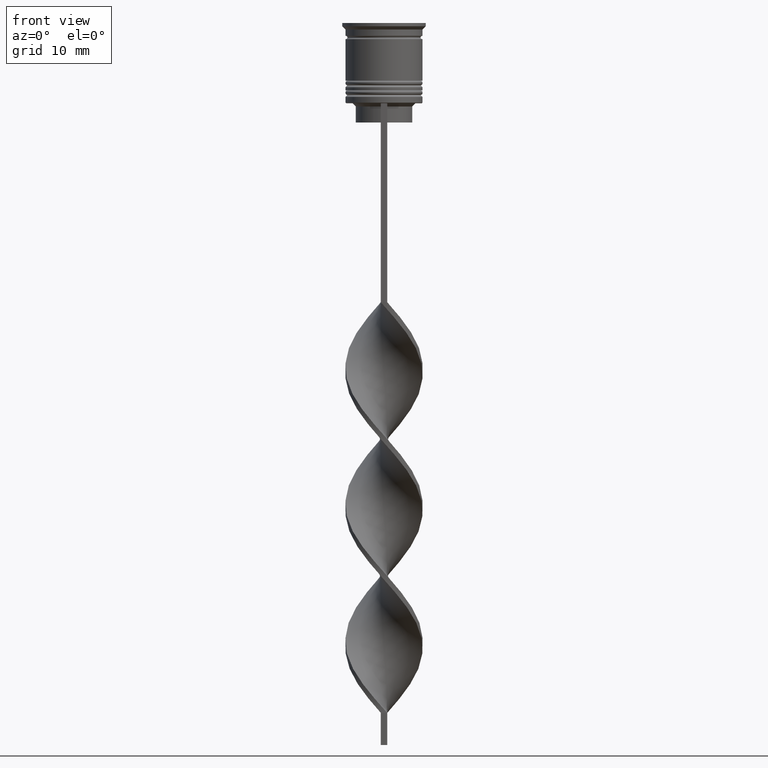
[diagram: clean part render]
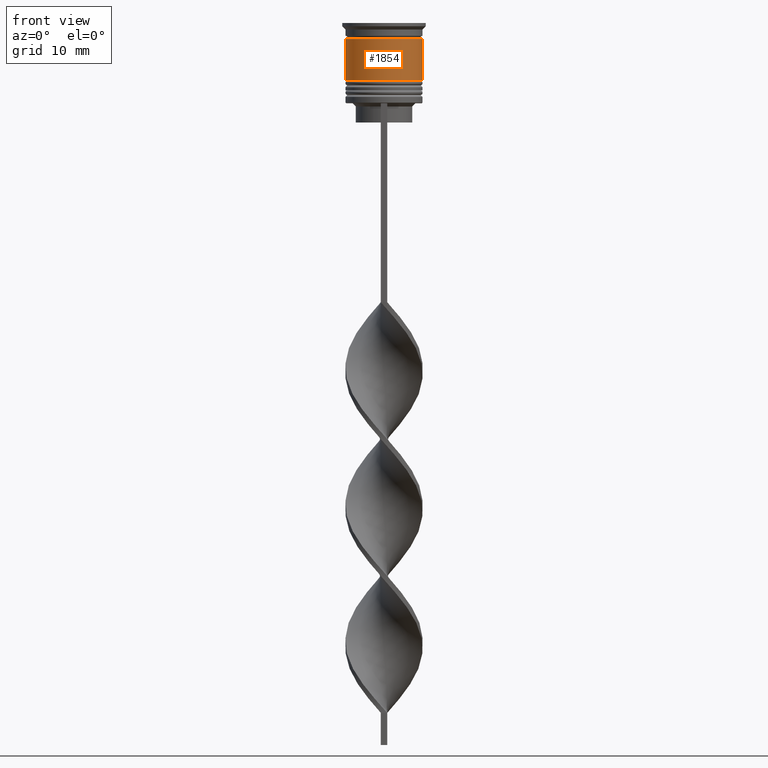
[diagram: same view with one face highlighted and labeled with its STEP entity id]
A machine part, front view. The second image highlights one B-rep face of the part: STEP entity #1854.
In plain terms, the highlighted cylindrical surface (partial cylindrical patch) has radius 6 mm, axis along (-0, -0, 1).
Its self-contained STEP definition (entity closure, byte-faithful):
#42 = CARTESIAN_POINT ( 'NONE',  ( 6.000000000000000000, 0.000000000000000000, 0.000000000000000000 ) ) ;
#134 = CIRCLE ( 'NONE', #2299, 5.999999999999999112 ) ;
#190 = EDGE_CURVE ( 'NONE', #3573, #1446, #2242, .T. ) ;
#226 = CARTESIAN_POINT ( 'NONE',  ( 0.000000000000000000, 0.000000000000000000, 0.000000000000000000 ) ) ;
#275 = DIRECTION ( 'NONE',  ( 1.000000000000000000, 0.000000000000000000, 0.000000000000000000 ) ) ;
#332 = EDGE_CURVE ( 'NONE', #3385, #1327, #860, .T. ) ;
#358 = CARTESIAN_POINT ( 'NONE',  ( 0.000000000000000000, 0.000000000000000000, -9.000000000000001776 ) ) ;
#422 = CIRCLE ( 'NONE', #1352, 6.000000000000000888 ) ;
#424 = CARTESIAN_POINT ( 'NONE',  ( -6.000000000000001776, 7.347880794884121708E-16, -9.000000000000001776 ) ) ;
#489 = CARTESIAN_POINT ( 'NONE',  ( 0.000000000000000000, 0.000000000000000000, -2.500000000000000444 ) ) ;
#732 = ORIENTED_EDGE ( 'NONE', *, *, #2391, .T. ) ;
#798 = FACE_OUTER_BOUND ( 'NONE', #1542, .T. ) ;
#860 = LINE ( 'NONE', #3345, #1276 ) ;
#902 = DIRECTION ( 'NONE',  ( -0.000000000000000000, -0.000000000000000000, 1.000000000000000000 ) ) ;
#1062 = DIRECTION ( 'NONE',  ( -0.000000000000000000, -0.000000000000000000, 1.000000000000000000 ) ) ;
#1063 = ORIENTED_EDGE ( 'NONE', *, *, #190, .T. ) ;
#1276 = VECTOR ( 'NONE', #902, 1000.000000000000000 ) ;
#1327 = VERTEX_POINT ( 'NONE', #3065 ) ;
#1334 = DIRECTION ( 'NONE',  ( 1.000000000000000000, 0.000000000000000000, 0.000000000000000000 ) ) ;
#1352 = AXIS2_PLACEMENT_3D ( 'NONE', #358, #2002, #2566 ) ;
#1446 = VERTEX_POINT ( 'NONE', #1997 ) ;
#1542 = EDGE_LOOP ( 'NONE', ( #1910, #732, #1063, #1892 ) ) ;
#1725 = CARTESIAN_POINT ( 'NONE',  ( 6.000000000000000888, 0.000000000000000000, -9.000000000000001776 ) ) ;
#1854 = ADVANCED_FACE ( 'NONE', ( #798 ), #3037, .T. ) ;
#1892 = ORIENTED_EDGE ( 'NONE', *, *, #2313, .F. ) ;
#1910 = ORIENTED_EDGE ( 'NONE', *, *, #332, .F. ) ;
#1989 = DIRECTION ( 'NONE',  ( -0.000000000000000000, -0.000000000000000000, 1.000000000000000000 ) ) ;
#1997 = CARTESIAN_POINT ( 'NONE',  ( 5.999999999999999112, 0.000000000000000000, -2.500000000000000444 ) ) ;
#2002 = DIRECTION ( 'NONE',  ( -0.000000000000000000, -0.000000000000000000, 1.000000000000000000 ) ) ;
#2242 = LINE ( 'NONE', #42, #2283 ) ;
#2283 = VECTOR ( 'NONE', #1989, 1000.000000000000000 ) ;
#2299 = AXIS2_PLACEMENT_3D ( 'NONE', #489, #3559, #275 ) ;
#2313 = EDGE_CURVE ( 'NONE', #1327, #1446, #134, .T. ) ;
#2391 = EDGE_CURVE ( 'NONE', #3385, #3573, #422, .T. ) ;
#2566 = DIRECTION ( 'NONE',  ( 1.000000000000000000, 0.000000000000000000, 0.000000000000000000 ) ) ;
#3037 = CYLINDRICAL_SURFACE ( 'NONE', #3265, 6.000000000000000000 ) ;
#3065 = CARTESIAN_POINT ( 'NONE',  ( -5.999999999999999112, 7.347880794884118750E-16, -2.500000000000000444 ) ) ;
#3265 = AXIS2_PLACEMENT_3D ( 'NONE', #226, #1062, #1334 ) ;
#3345 = CARTESIAN_POINT ( 'NONE',  ( -6.000000000000000000, 7.347880794884119736E-16, 0.000000000000000000 ) ) ;
#3385 = VERTEX_POINT ( 'NONE', #424 ) ;
#3559 = DIRECTION ( 'NONE',  ( -0.000000000000000000, -0.000000000000000000, 1.000000000000000000 ) ) ;
#3573 = VERTEX_POINT ( 'NONE', #1725 ) ;